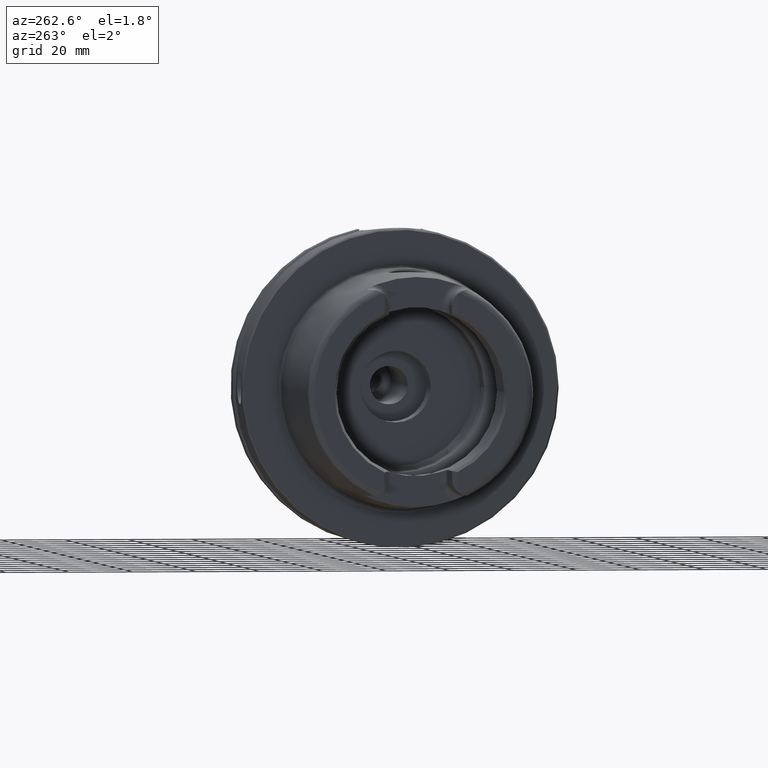
[diagram: clean part render]
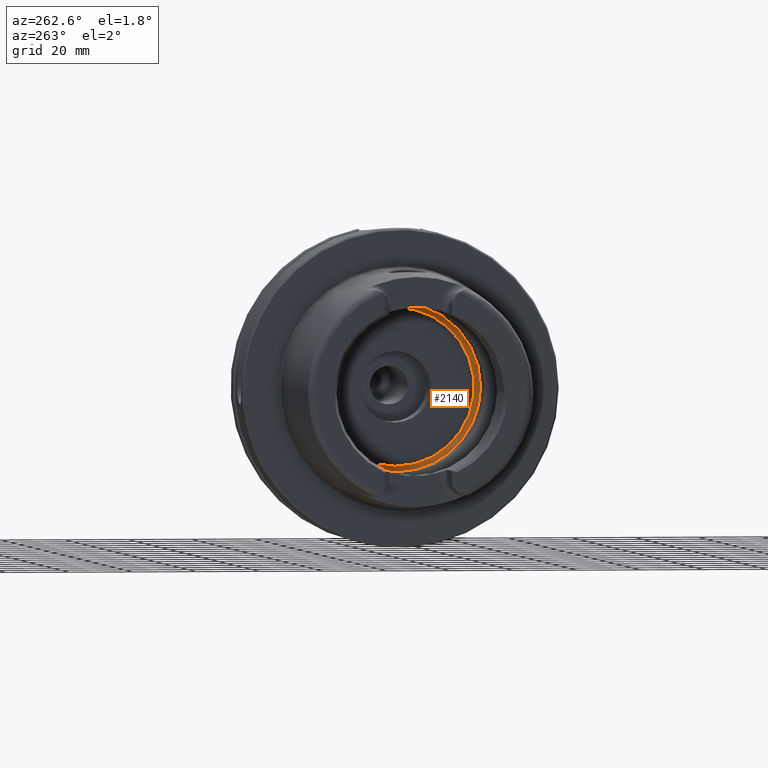
[diagram: same view with one face highlighted and labeled with its STEP entity id]
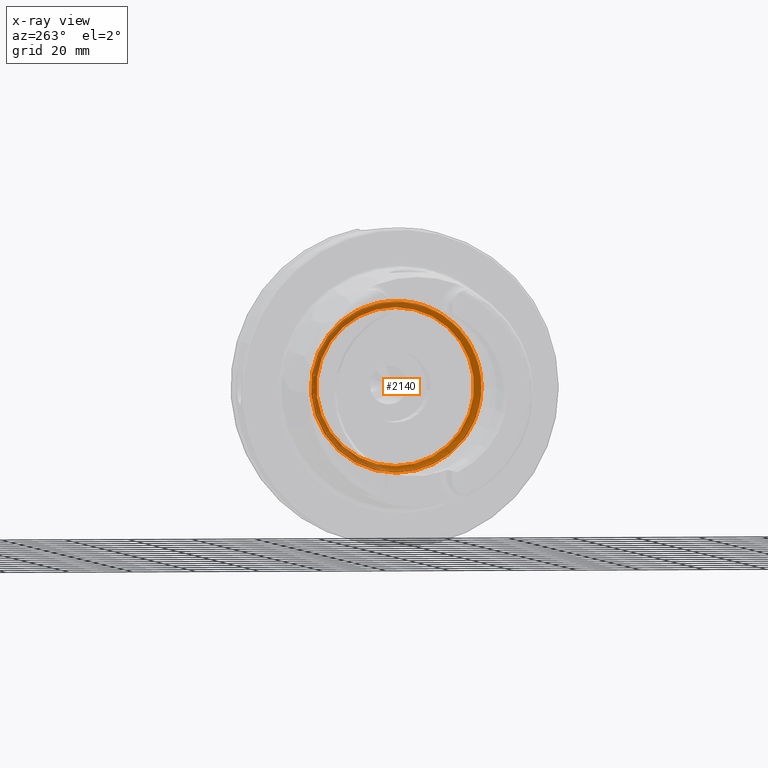
[diagram: x-ray of the same camera — body ghosted, the highlighted face saturated]
A machine part, auxiliary view. The second image highlights one B-rep face of the part: STEP entity #2140.
The next image is the same camera in x-ray: the body ghosted, the highlighted face saturated — about 47% of this face is hidden behind the body in this view.
In plain terms, the highlighted toroidal blend (fillet) surface has major radius 24.9 mm and minor (blend) radius 2 mm.
Its self-contained STEP definition (entity closure, byte-faithful):
#159=TOROIDAL_SURFACE('',#2414,24.9,2.);
#318=FACE_OUTER_BOUND('',#453,.T.);
#453=EDGE_LOOP('',(#1939,#1940,#1941,#1942,#1943));
#806=CIRCLE('',#2413,24.9);
#807=CIRCLE('',#2415,2.);
#808=CIRCLE('',#2416,26.5);
#809=CIRCLE('',#2417,26.5);
#1027=VERTEX_POINT('',#4587);
#1028=VERTEX_POINT('',#4590);
#1029=VERTEX_POINT('',#4592);
#1338=EDGE_CURVE('',#1027,#1027,#806,.T.);
#1339=EDGE_CURVE('',#1027,#1028,#807,.T.);
#1340=EDGE_CURVE('',#1028,#1029,#808,.T.);
#1341=EDGE_CURVE('',#1029,#1028,#809,.T.);
#1939=ORIENTED_EDGE('',*,*,#1338,.F.);
#1940=ORIENTED_EDGE('',*,*,#1339,.T.);
#1941=ORIENTED_EDGE('',*,*,#1340,.T.);
#1942=ORIENTED_EDGE('',*,*,#1341,.T.);
#1943=ORIENTED_EDGE('',*,*,#1339,.F.);
#2140=ADVANCED_FACE('',(#318),#159,.F.);
#2413=AXIS2_PLACEMENT_3D('',#4588,#3021,#3022);
#2414=AXIS2_PLACEMENT_3D('',#4589,#3023,#3024);
#2415=AXIS2_PLACEMENT_3D('',#4591,#3025,#3026);
#2416=AXIS2_PLACEMENT_3D('',#4593,#3027,#3028);
#2417=AXIS2_PLACEMENT_3D('',#4594,#3029,#3030);
#3021=DIRECTION('center_axis',(-1.,0.,0.));
#3022=DIRECTION('ref_axis',(0.,0.,1.));
#3023=DIRECTION('center_axis',(-1.,0.,0.));
#3024=DIRECTION('ref_axis',(0.,0.,1.));
#3025=DIRECTION('center_axis',(0.,1.,-1.22464679914735E-16));
#3026=DIRECTION('ref_axis',(0.,-1.22464679914735E-16,-1.));
#3027=DIRECTION('center_axis',(-1.,0.,0.));
#3028=DIRECTION('ref_axis',(0.,0.,1.));
#3029=DIRECTION('center_axis',(-1.,0.,0.));
#3030=DIRECTION('ref_axis',(0.,0.,1.));
#4587=CARTESIAN_POINT('',(12.5,-3.04937052987691E-15,-24.9));
#4588=CARTESIAN_POINT('Origin',(12.5,0.,0.));
#4589=CARTESIAN_POINT('Origin',(10.5,0.,0.));
#4590=CARTESIAN_POINT('',(9.3,-3.24531401774049E-15,-26.5));
#4591=CARTESIAN_POINT('Origin',(10.5,-3.04937052987691E-15,-24.9));
#4592=CARTESIAN_POINT('',(9.3,-26.5,3.24531401774049E-15));
#4593=CARTESIAN_POINT('Origin',(9.3,0.,0.));
#4594=CARTESIAN_POINT('Origin',(9.3,0.,0.));